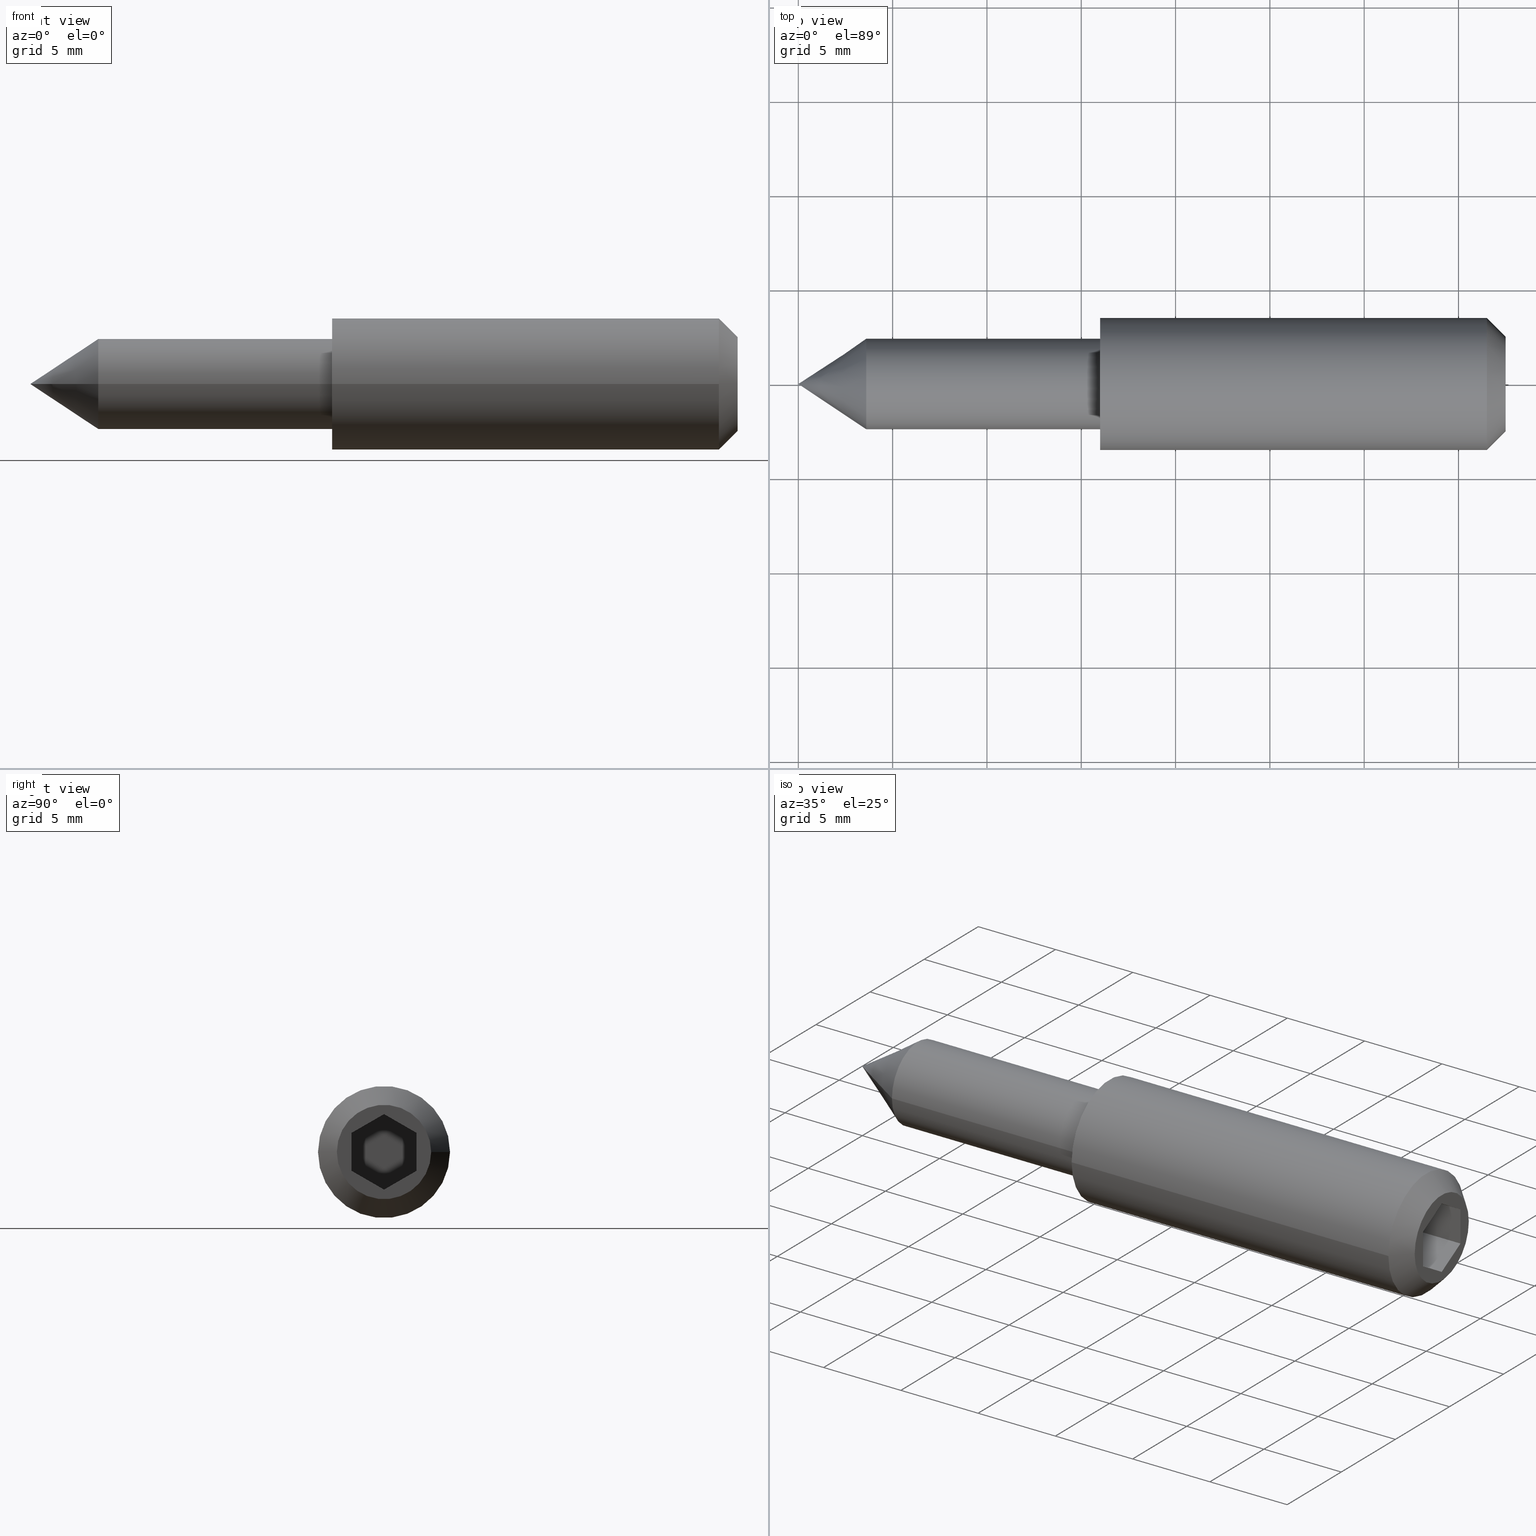
[diagram: canonical four-view strip — front | top / right | iso, engineering-drawing reading convention]
A machine part, canonical four-view strip (front | top / right | iso — engineering-drawing reading convention). The complete STEP part file that produces these views, byte-faithful:
ISO-10303-21;
HEADER;
/* Generated by software containing ST-Developer
 * from STEP Tools, Inc. (www.steptools.com) 
 */

FILE_DESCRIPTION(
/* description */ ('VITE MANIG.SOFF. 4,8X16 TESTA H.21,5 /AV'),
/* implementation_level */ '2;1');

FILE_NAME(
/* name */ 
'Q:\\Catalogo\\3_Profili e accessori MACAP\\Per Download Web e catalog
o artaceo\\ACCESSORI\\PAGINA 47\\DVIXX0000004-XT10207.stp',
/* time_stamp */ '2019-12-16T16:26:44+01:00',
/* author */ ('fzagni'),
/* organization */ (''),
/* preprocessor_version */ 'ST-DEVELOPER v17.2',
/* originating_system */ 'Autodesk Inventor 2019',
/* authorisation */ '');

FILE_SCHEMA (('AUTOMOTIVE_DESIGN { 1 0 10303 214 3 1 1 }'));
ENDSEC;

DATA;
#10=MECHANICAL_DESIGN_GEOMETRIC_PRESENTATION_REPRESENTATION('',(#13),#419);
#11=SHAPE_REPRESENTATION_RELATIONSHIP('SRR','None',#426,#12);
#12=ADVANCED_BREP_SHAPE_REPRESENTATION('',(#14),#418);
#13=STYLED_ITEM('',(#435),#14);
#14=MANIFOLD_SOLID_BREP('Solido2',#239);
#15=FACE_BOUND('',#53,.T.);
#16=FACE_BOUND('',#55,.T.);
#17=CYLINDRICAL_SURFACE('',#270,3.50000000000001);
#18=CYLINDRICAL_SURFACE('',#280,2.4);
#19=CIRCLE('',#267,2.50000000000001);
#20=CIRCLE('',#268,3.50000000000001);
#21=CIRCLE('',#269,3.50000000000001);
#22=CIRCLE('',#271,3.5);
#23=CIRCLE('',#272,3.5);
#24=CIRCLE('',#275,2.4);
#25=CIRCLE('',#276,2.4);
#26=CIRCLE('',#278,2.4);
#27=CIRCLE('',#279,2.4);
#28=CONICAL_SURFACE('',#266,3.00000000000001,0.785398163397447);
#29=CONICAL_SURFACE('',#277,1.2,0.588063400227165);
#30=FACE_OUTER_BOUND('',#43,.T.);
#31=FACE_OUTER_BOUND('',#44,.T.);
#32=FACE_OUTER_BOUND('',#45,.T.);
#33=FACE_OUTER_BOUND('',#46,.T.);
#34=FACE_OUTER_BOUND('',#47,.T.);
#35=FACE_OUTER_BOUND('',#48,.T.);
#36=FACE_OUTER_BOUND('',#49,.T.);
#37=FACE_OUTER_BOUND('',#50,.T.);
#38=FACE_OUTER_BOUND('',#51,.T.);
#39=FACE_OUTER_BOUND('',#52,.T.);
#40=FACE_OUTER_BOUND('',#54,.T.);
#41=FACE_OUTER_BOUND('',#56,.T.);
#42=FACE_OUTER_BOUND('',#57,.T.);
#43=EDGE_LOOP('',(#155,#156,#157,#158));
#44=EDGE_LOOP('',(#159,#160,#161,#162));
#45=EDGE_LOOP('',(#163,#164,#165,#166));
#46=EDGE_LOOP('',(#167,#168,#169,#170));
#47=EDGE_LOOP('',(#171,#172,#173,#174));
#48=EDGE_LOOP('',(#175,#176,#177,#178));
#49=EDGE_LOOP('',(#179,#180,#181,#182,#183,#184));
#50=EDGE_LOOP('',(#185,#186,#187,#188,#189));
#51=EDGE_LOOP('',(#190,#191,#192,#193,#194,#195));
#52=EDGE_LOOP('',(#196));
#53=EDGE_LOOP('',(#197,#198,#199,#200,#201,#202));
#54=EDGE_LOOP('',(#203,#204));
#55=EDGE_LOOP('',(#205,#206));
#56=EDGE_LOOP('',(#207,#208,#209,#210));
#57=EDGE_LOOP('',(#211,#212,#213,#214,#215,#216));
#58=LINE('',#353,#80);
#59=LINE('',#355,#81);
#60=LINE('',#357,#82);
#61=LINE('',#358,#83);
#62=LINE('',#361,#84);
#63=LINE('',#363,#85);
#64=LINE('',#364,#86);
#65=LINE('',#367,#87);
#66=LINE('',#369,#88);
#67=LINE('',#370,#89);
#68=LINE('',#373,#90);
#69=LINE('',#375,#91);
#70=LINE('',#376,#92);
#71=LINE('',#379,#93);
#72=LINE('',#381,#94);
#73=LINE('',#382,#95);
#74=LINE('',#384,#96);
#75=LINE('',#385,#97);
#76=LINE('',#391,#98);
#77=LINE('',#397,#99);
#78=LINE('',#413,#100);
#79=LINE('',#415,#101);
#80=VECTOR('',#285,10.);
#81=VECTOR('',#286,10.);
#82=VECTOR('',#287,10.);
#83=VECTOR('',#288,10.);
#84=VECTOR('',#291,10.);
#85=VECTOR('',#292,10.);
#86=VECTOR('',#293,10.);
#87=VECTOR('',#296,10.);
#88=VECTOR('',#297,10.);
#89=VECTOR('',#298,10.);
#90=VECTOR('',#301,10.);
#91=VECTOR('',#302,10.);
#92=VECTOR('',#303,10.);
#93=VECTOR('',#306,10.);
#94=VECTOR('',#307,10.);
#95=VECTOR('',#308,10.);
#96=VECTOR('',#311,10.);
#97=VECTOR('',#312,10.);
#98=VECTOR('',#319,3.00000000000001);
#99=VECTOR('',#326,3.50000000000001);
#100=VECTOR('',#345,1.2);
#101=VECTOR('',#348,2.4);
#102=VERTEX_POINT('',#351);
#103=VERTEX_POINT('',#352);
#104=VERTEX_POINT('',#354);
#105=VERTEX_POINT('',#356);
#106=VERTEX_POINT('',#360);
#107=VERTEX_POINT('',#362);
#108=VERTEX_POINT('',#366);
#109=VERTEX_POINT('',#368);
#110=VERTEX_POINT('',#372);
#111=VERTEX_POINT('',#374);
#112=VERTEX_POINT('',#378);
#113=VERTEX_POINT('',#380);
#114=VERTEX_POINT('',#388);
#115=VERTEX_POINT('',#390);
#116=VERTEX_POINT('',#392);
#117=VERTEX_POINT('',#396);
#118=VERTEX_POINT('',#398);
#119=VERTEX_POINT('',#403);
#120=VERTEX_POINT('',#404);
#121=VERTEX_POINT('',#408);
#122=VERTEX_POINT('',#409);
#123=VERTEX_POINT('',#412);
#124=EDGE_CURVE('',#102,#103,#58,.T.);
#125=EDGE_CURVE('',#102,#104,#59,.T.);
#126=EDGE_CURVE('',#104,#105,#60,.T.);
#127=EDGE_CURVE('',#103,#105,#61,.T.);
#128=EDGE_CURVE('',#106,#102,#62,.T.);
#129=EDGE_CURVE('',#106,#107,#63,.T.);
#130=EDGE_CURVE('',#107,#104,#64,.T.);
#131=EDGE_CURVE('',#108,#106,#65,.T.);
#132=EDGE_CURVE('',#108,#109,#66,.T.);
#133=EDGE_CURVE('',#109,#107,#67,.T.);
#134=EDGE_CURVE('',#110,#108,#68,.T.);
#135=EDGE_CURVE('',#110,#111,#69,.T.);
#136=EDGE_CURVE('',#111,#109,#70,.T.);
#137=EDGE_CURVE('',#112,#110,#71,.T.);
#138=EDGE_CURVE('',#112,#113,#72,.T.);
#139=EDGE_CURVE('',#113,#111,#73,.T.);
#140=EDGE_CURVE('',#103,#112,#74,.T.);
#141=EDGE_CURVE('',#105,#113,#75,.T.);
#142=EDGE_CURVE('',#114,#114,#19,.T.);
#143=EDGE_CURVE('',#114,#115,#76,.T.);
#144=EDGE_CURVE('',#115,#116,#20,.T.);
#145=EDGE_CURVE('',#116,#115,#21,.T.);
#146=EDGE_CURVE('',#116,#117,#77,.T.);
#147=EDGE_CURVE('',#117,#118,#22,.T.);
#148=EDGE_CURVE('',#118,#117,#23,.T.);
#149=EDGE_CURVE('',#119,#120,#24,.T.);
#150=EDGE_CURVE('',#120,#119,#25,.T.);
#151=EDGE_CURVE('',#121,#122,#26,.T.);
#152=EDGE_CURVE('',#122,#121,#27,.T.);
#153=EDGE_CURVE('',#122,#123,#78,.T.);
#154=EDGE_CURVE('',#120,#122,#79,.T.);
#155=ORIENTED_EDGE('',*,*,#124,.F.);
#156=ORIENTED_EDGE('',*,*,#125,.T.);
#157=ORIENTED_EDGE('',*,*,#126,.T.);
#158=ORIENTED_EDGE('',*,*,#127,.F.);
#159=ORIENTED_EDGE('',*,*,#128,.F.);
#160=ORIENTED_EDGE('',*,*,#129,.T.);
#161=ORIENTED_EDGE('',*,*,#130,.T.);
#162=ORIENTED_EDGE('',*,*,#125,.F.);
#163=ORIENTED_EDGE('',*,*,#131,.F.);
#164=ORIENTED_EDGE('',*,*,#132,.T.);
#165=ORIENTED_EDGE('',*,*,#133,.T.);
#166=ORIENTED_EDGE('',*,*,#129,.F.);
#167=ORIENTED_EDGE('',*,*,#134,.F.);
#168=ORIENTED_EDGE('',*,*,#135,.T.);
#169=ORIENTED_EDGE('',*,*,#136,.T.);
#170=ORIENTED_EDGE('',*,*,#132,.F.);
#171=ORIENTED_EDGE('',*,*,#137,.F.);
#172=ORIENTED_EDGE('',*,*,#138,.T.);
#173=ORIENTED_EDGE('',*,*,#139,.T.);
#174=ORIENTED_EDGE('',*,*,#135,.F.);
#175=ORIENTED_EDGE('',*,*,#140,.F.);
#176=ORIENTED_EDGE('',*,*,#127,.T.);
#177=ORIENTED_EDGE('',*,*,#141,.T.);
#178=ORIENTED_EDGE('',*,*,#138,.F.);
#179=ORIENTED_EDGE('',*,*,#141,.F.);
#180=ORIENTED_EDGE('',*,*,#126,.F.);
#181=ORIENTED_EDGE('',*,*,#130,.F.);
#182=ORIENTED_EDGE('',*,*,#133,.F.);
#183=ORIENTED_EDGE('',*,*,#136,.F.);
#184=ORIENTED_EDGE('',*,*,#139,.F.);
#185=ORIENTED_EDGE('',*,*,#142,.T.);
#186=ORIENTED_EDGE('',*,*,#143,.T.);
#187=ORIENTED_EDGE('',*,*,#144,.T.);
#188=ORIENTED_EDGE('',*,*,#145,.T.);
#189=ORIENTED_EDGE('',*,*,#143,.F.);
#190=ORIENTED_EDGE('',*,*,#144,.F.);
#191=ORIENTED_EDGE('',*,*,#145,.F.);
#192=ORIENTED_EDGE('',*,*,#146,.T.);
#193=ORIENTED_EDGE('',*,*,#147,.T.);
#194=ORIENTED_EDGE('',*,*,#148,.T.);
#195=ORIENTED_EDGE('',*,*,#146,.F.);
#196=ORIENTED_EDGE('',*,*,#142,.F.);
#197=ORIENTED_EDGE('',*,*,#124,.T.);
#198=ORIENTED_EDGE('',*,*,#140,.T.);
#199=ORIENTED_EDGE('',*,*,#137,.T.);
#200=ORIENTED_EDGE('',*,*,#134,.T.);
#201=ORIENTED_EDGE('',*,*,#131,.T.);
#202=ORIENTED_EDGE('',*,*,#128,.T.);
#203=ORIENTED_EDGE('',*,*,#148,.F.);
#204=ORIENTED_EDGE('',*,*,#147,.F.);
#205=ORIENTED_EDGE('',*,*,#149,.T.);
#206=ORIENTED_EDGE('',*,*,#150,.T.);
#207=ORIENTED_EDGE('',*,*,#151,.F.);
#208=ORIENTED_EDGE('',*,*,#152,.F.);
#209=ORIENTED_EDGE('',*,*,#153,.T.);
#210=ORIENTED_EDGE('',*,*,#153,.F.);
#211=ORIENTED_EDGE('',*,*,#149,.F.);
#212=ORIENTED_EDGE('',*,*,#150,.F.);
#213=ORIENTED_EDGE('',*,*,#154,.T.);
#214=ORIENTED_EDGE('',*,*,#152,.T.);
#215=ORIENTED_EDGE('',*,*,#151,.T.);
#216=ORIENTED_EDGE('',*,*,#154,.F.);
#217=PLANE('',#259);
#218=PLANE('',#260);
#219=PLANE('',#261);
#220=PLANE('',#262);
#221=PLANE('',#263);
#222=PLANE('',#264);
#223=PLANE('',#265);
#224=PLANE('',#273);
#225=PLANE('',#274);
#226=ADVANCED_FACE('',(#30),#217,.F.);
#227=ADVANCED_FACE('',(#31),#218,.F.);
#228=ADVANCED_FACE('',(#32),#219,.F.);
#229=ADVANCED_FACE('',(#33),#220,.F.);
#230=ADVANCED_FACE('',(#34),#221,.F.);
#231=ADVANCED_FACE('',(#35),#222,.F.);
#232=ADVANCED_FACE('',(#36),#223,.T.);
#233=ADVANCED_FACE('',(#37),#28,.T.);
#234=ADVANCED_FACE('',(#38),#17,.T.);
#235=ADVANCED_FACE('',(#39,#15),#224,.T.);
#236=ADVANCED_FACE('',(#40,#16),#225,.T.);
#237=ADVANCED_FACE('',(#41),#29,.T.);
#238=ADVANCED_FACE('',(#42),#18,.T.);
#239=CLOSED_SHELL('',(#226,#227,#228,#229,#230,#231,#232,#233,#234,#235,
#236,#237,#238));
#240=DERIVED_UNIT_ELEMENT(#242,1.);
#241=DERIVED_UNIT_ELEMENT(#421,3.);
#242=(
MASS_UNIT()
NAMED_UNIT(*)
SI_UNIT($,.GRAM.)
);
#243=DERIVED_UNIT((#240,#241));
#244=MEASURE_REPRESENTATION_ITEM('density measure',
POSITIVE_RATIO_MEASURE(7.85),#243);
#245=PROPERTY_DEFINITION_REPRESENTATION(#250,#247);
#246=PROPERTY_DEFINITION_REPRESENTATION(#251,#248);
#247=REPRESENTATION('material name',(#249),#418);
#248=REPRESENTATION('density',(#244),#418);
#249=DESCRIPTIVE_REPRESENTATION_ITEM('Acciaio S355JR','Acciaio S355JR');
#250=PROPERTY_DEFINITION('material property','material name',#428);
#251=PROPERTY_DEFINITION('material property','density of part',#428);
#252=DATE_TIME_ROLE('creation_date');
#253=APPLIED_DATE_AND_TIME_ASSIGNMENT(#254,#252,(#428));
#254=DATE_AND_TIME(#255,#256);
#255=CALENDAR_DATE(2012,29,10);
#256=LOCAL_TIME(23,0,0.,#257);
#257=COORDINATED_UNIVERSAL_TIME_OFFSET(0,0,.BEHIND.);
#258=AXIS2_PLACEMENT_3D('placement',#349,#281,#282);
#259=AXIS2_PLACEMENT_3D('',#350,#283,#284);
#260=AXIS2_PLACEMENT_3D('',#359,#289,#290);
#261=AXIS2_PLACEMENT_3D('',#365,#294,#295);
#262=AXIS2_PLACEMENT_3D('',#371,#299,#300);
#263=AXIS2_PLACEMENT_3D('',#377,#304,#305);
#264=AXIS2_PLACEMENT_3D('',#383,#309,#310);
#265=AXIS2_PLACEMENT_3D('',#386,#313,#314);
#266=AXIS2_PLACEMENT_3D('',#387,#315,#316);
#267=AXIS2_PLACEMENT_3D('',#389,#317,#318);
#268=AXIS2_PLACEMENT_3D('',#393,#320,#321);
#269=AXIS2_PLACEMENT_3D('',#394,#322,#323);
#270=AXIS2_PLACEMENT_3D('',#395,#324,#325);
#271=AXIS2_PLACEMENT_3D('',#399,#327,#328);
#272=AXIS2_PLACEMENT_3D('',#400,#329,#330);
#273=AXIS2_PLACEMENT_3D('',#401,#331,#332);
#274=AXIS2_PLACEMENT_3D('',#402,#333,#334);
#275=AXIS2_PLACEMENT_3D('',#405,#335,#336);
#276=AXIS2_PLACEMENT_3D('',#406,#337,#338);
#277=AXIS2_PLACEMENT_3D('',#407,#339,#340);
#278=AXIS2_PLACEMENT_3D('',#410,#341,#342);
#279=AXIS2_PLACEMENT_3D('',#411,#343,#344);
#280=AXIS2_PLACEMENT_3D('',#414,#346,#347);
#281=DIRECTION('axis',(0.,0.,1.));
#282=DIRECTION('refdir',(1.,0.,0.));
#283=DIRECTION('center_axis',(0.,-0.5,-0.866025403784439));
#284=DIRECTION('ref_axis',(0.,-0.866025403784439,0.5));
#285=DIRECTION('',(0.,-0.866025403784439,0.5));
#286=DIRECTION('',(-1.,0.,0.));
#287=DIRECTION('',(0.,-0.866025403784439,0.5));
#288=DIRECTION('',(-1.,0.,0.));
#289=DIRECTION('center_axis',(0.,0.500000000000001,-0.866025403784438));
#290=DIRECTION('ref_axis',(0.,-0.866025403784438,-0.5));
#291=DIRECTION('',(0.,-0.866025403784438,-0.5));
#292=DIRECTION('',(-1.,0.,0.));
#293=DIRECTION('',(0.,-0.866025403784438,-0.5));
#294=DIRECTION('center_axis',(0.,1.,1.38777878078145E-16));
#295=DIRECTION('ref_axis',(0.,1.38777878078145E-16,-1.));
#296=DIRECTION('',(0.,1.38777878078145E-16,-1.));
#297=DIRECTION('',(-1.,0.,0.));
#298=DIRECTION('',(0.,1.38777878078145E-16,-1.));
#299=DIRECTION('center_axis',(0.,0.5,0.866025403784439));
#300=DIRECTION('ref_axis',(0.,0.866025403784439,-0.5));
#301=DIRECTION('',(0.,0.866025403784439,-0.5));
#302=DIRECTION('',(-1.,0.,0.));
#303=DIRECTION('',(0.,0.866025403784439,-0.5));
#304=DIRECTION('center_axis',(0.,-0.5,0.866025403784439));
#305=DIRECTION('ref_axis',(0.,0.866025403784439,0.5));
#306=DIRECTION('',(0.,0.866025403784439,0.5));
#307=DIRECTION('',(-1.,0.,0.));
#308=DIRECTION('',(0.,0.866025403784439,0.5));
#309=DIRECTION('center_axis',(0.,-1.,1.38777878078145E-16));
#310=DIRECTION('ref_axis',(0.,1.38777878078145E-16,1.));
#311=DIRECTION('',(0.,1.38777878078145E-16,1.));
#312=DIRECTION('',(0.,1.38777878078145E-16,1.));
#313=DIRECTION('center_axis',(1.,0.,0.));
#314=DIRECTION('ref_axis',(0.,0.,-1.));
#315=DIRECTION('center_axis',(-1.,0.,0.));
#316=DIRECTION('ref_axis',(0.,-1.,0.));
#317=DIRECTION('center_axis',(-1.,0.,0.));
#318=DIRECTION('ref_axis',(0.,-1.,0.));
#319=DIRECTION('',(-0.707106781186549,0.707106781186546,8.65956056235492E-17));
#320=DIRECTION('center_axis',(1.,0.,0.));
#321=DIRECTION('ref_axis',(0.,-1.,0.));
#322=DIRECTION('center_axis',(1.,0.,0.));
#323=DIRECTION('ref_axis',(0.,-1.,0.));
#324=DIRECTION('center_axis',(1.,0.,0.));
#325=DIRECTION('ref_axis',(0.,1.,0.));
#326=DIRECTION('',(-1.,0.,0.));
#327=DIRECTION('center_axis',(1.,0.,0.));
#328=DIRECTION('ref_axis',(0.,1.,0.));
#329=DIRECTION('center_axis',(1.,0.,0.));
#330=DIRECTION('ref_axis',(0.,1.,0.));
#331=DIRECTION('center_axis',(1.,0.,0.));
#332=DIRECTION('ref_axis',(0.,0.,-1.));
#333=DIRECTION('center_axis',(-1.,0.,0.));
#334=DIRECTION('ref_axis',(0.,0.,1.));
#335=DIRECTION('center_axis',(1.,0.,0.));
#336=DIRECTION('ref_axis',(0.,1.,0.));
#337=DIRECTION('center_axis',(1.,0.,0.));
#338=DIRECTION('ref_axis',(0.,1.,0.));
#339=DIRECTION('center_axis',(1.,0.,0.));
#340=DIRECTION('ref_axis',(0.,1.,0.));
#341=DIRECTION('center_axis',(1.,0.,0.));
#342=DIRECTION('ref_axis',(0.,1.,0.));
#343=DIRECTION('center_axis',(1.,0.,0.));
#344=DIRECTION('ref_axis',(0.,1.,0.));
#345=DIRECTION('',(-0.832016568870035,0.554750781095201,6.79373768392731E-17));
#346=DIRECTION('center_axis',(1.,0.,0.));
#347=DIRECTION('ref_axis',(0.,1.,0.));
#348=DIRECTION('',(-1.,0.,0.));
#349=CARTESIAN_POINT('',(0.,0.,0.));
#350=CARTESIAN_POINT('Origin',(37.5,2.06871506404621E-15,-2.));
#351=CARTESIAN_POINT('',(37.5,2.06871506404621E-15,-2.));
#352=CARTESIAN_POINT('',(37.5,-1.73205080756888,-1.));
#353=CARTESIAN_POINT('',(37.5,0.223237298107784,-2.12888611415569));
#354=CARTESIAN_POINT('',(30.5,1.94289029309402E-15,-2.));
#355=CARTESIAN_POINT('',(37.5,2.06871506404621E-15,-2.));
#356=CARTESIAN_POINT('',(30.5,-1.73205080756888,-1.));
#357=CARTESIAN_POINT('',(30.5,2.06871506404621E-15,-2.));
#358=CARTESIAN_POINT('',(37.5,-1.73205080756888,-1.));
#359=CARTESIAN_POINT('Origin',(37.5,1.73205080756888,-1.));
#360=CARTESIAN_POINT('',(37.5,1.73205080756888,-1.));
#361=CARTESIAN_POINT('',(37.5,1.95528810567666,-0.871113885844307));
#362=CARTESIAN_POINT('',(30.5,1.73205080756888,-1.));
#363=CARTESIAN_POINT('',(37.5,1.73205080756888,-1.));
#364=CARTESIAN_POINT('',(30.5,1.73205080756888,-1.));
#365=CARTESIAN_POINT('Origin',(37.5,1.73205080756888,1.));
#366=CARTESIAN_POINT('',(37.5,1.73205080756888,1.));
#367=CARTESIAN_POINT('',(37.5,1.73205080756888,0.5));
#368=CARTESIAN_POINT('',(30.5,1.73205080756888,1.));
#369=CARTESIAN_POINT('',(37.5,1.73205080756888,1.));
#370=CARTESIAN_POINT('',(30.5,1.73205080756888,1.));
#371=CARTESIAN_POINT('Origin',(37.5,0.,2.));
#372=CARTESIAN_POINT('',(37.5,0.,2.));
#373=CARTESIAN_POINT('',(37.5,1.08926270189222,1.37111388584431));
#374=CARTESIAN_POINT('',(30.5,0.,2.));
#375=CARTESIAN_POINT('',(37.5,0.,2.));
#376=CARTESIAN_POINT('',(30.5,0.,2.));
#377=CARTESIAN_POINT('Origin',(37.5,-1.73205080756888,1.));
#378=CARTESIAN_POINT('',(37.5,-1.73205080756888,1.));
#379=CARTESIAN_POINT('',(37.5,-0.642788105676656,1.62888611415569));
#380=CARTESIAN_POINT('',(30.5,-1.73205080756888,1.));
#381=CARTESIAN_POINT('',(37.5,-1.73205080756888,1.));
#382=CARTESIAN_POINT('',(30.5,-1.73205080756888,1.));
#383=CARTESIAN_POINT('Origin',(37.5,-1.73205080756888,-1.));
#384=CARTESIAN_POINT('',(37.5,-1.73205080756888,-0.5));
#385=CARTESIAN_POINT('',(30.5,-1.73205080756888,-1.));
#386=CARTESIAN_POINT('Origin',(30.5,8.67361737988404E-17,1.30104260698261E-16));
#387=CARTESIAN_POINT('Origin',(37.,0.,0.));
#388=CARTESIAN_POINT('',(37.5,2.50000000000001,-3.06161699786839E-16));
#389=CARTESIAN_POINT('Origin',(37.5,0.,0.));
#390=CARTESIAN_POINT('',(36.5,3.50000000000001,4.28626379701574E-16));
#391=CARTESIAN_POINT('',(37.,3.00000000000001,3.67394039744207E-16));
#392=CARTESIAN_POINT('',(36.5,-3.50000000000001,-4.28626379701574E-16));
#393=CARTESIAN_POINT('Origin',(36.5,0.,0.));
#394=CARTESIAN_POINT('Origin',(36.5,0.,0.));
#395=CARTESIAN_POINT('Origin',(26.75,0.,0.));
#396=CARTESIAN_POINT('',(16.,-3.50000000000001,-4.28626379701574E-16));
#397=CARTESIAN_POINT('',(26.75,-3.50000000000001,-4.28626379701574E-16));
#398=CARTESIAN_POINT('',(16.,3.5,0.));
#399=CARTESIAN_POINT('Origin',(16.,0.,0.));
#400=CARTESIAN_POINT('Origin',(16.,0.,0.));
#401=CARTESIAN_POINT('Origin',(37.5,1.75,0.));
#402=CARTESIAN_POINT('Origin',(16.,2.95,0.));
#403=CARTESIAN_POINT('',(16.,2.4,0.));
#404=CARTESIAN_POINT('',(16.,-2.4,-2.93915231795365E-16));
#405=CARTESIAN_POINT('Origin',(16.,0.,0.));
#406=CARTESIAN_POINT('Origin',(16.,0.,0.));
#407=CARTESIAN_POINT('Origin',(1.79976291457029,0.,0.));
#408=CARTESIAN_POINT('',(3.59952582914057,2.4,0.));
#409=CARTESIAN_POINT('',(3.59952582914057,-2.4,-2.93915231795365E-16));
#410=CARTESIAN_POINT('Origin',(3.59952582914057,0.,0.));
#411=CARTESIAN_POINT('Origin',(3.59952582914057,0.,0.));
#412=CARTESIAN_POINT('',(0.,0.,0.));
#413=CARTESIAN_POINT('',(1.79976291457029,-1.2,-1.46957615897682E-16));
#414=CARTESIAN_POINT('Origin',(9.79976291457029,0.,0.));
#415=CARTESIAN_POINT('',(9.79976291457029,-2.4,-2.93915231795365E-16));
#416=UNCERTAINTY_MEASURE_WITH_UNIT(LENGTH_MEASURE(0.01),#420,
'DISTANCE_ACCURACY_VALUE',
'Maximum model space distance between geometric entities at asserted c
onnectivities');
#417=UNCERTAINTY_MEASURE_WITH_UNIT(LENGTH_MEASURE(0.01),#420,
'DISTANCE_ACCURACY_VALUE',
'Maximum model space distance between geometric entities at asserted c
onnectivities');
#418=(
GEOMETRIC_REPRESENTATION_CONTEXT(3)
GLOBAL_UNCERTAINTY_ASSIGNED_CONTEXT((#416))
GLOBAL_UNIT_ASSIGNED_CONTEXT((#420,#422,#423))
REPRESENTATION_CONTEXT('','3D')
);
#419=(
GEOMETRIC_REPRESENTATION_CONTEXT(3)
GLOBAL_UNCERTAINTY_ASSIGNED_CONTEXT((#417))
GLOBAL_UNIT_ASSIGNED_CONTEXT((#420,#422,#423))
REPRESENTATION_CONTEXT('','3D')
);
#420=(
LENGTH_UNIT()
NAMED_UNIT(*)
SI_UNIT(.MILLI.,.METRE.)
);
#421=(
LENGTH_UNIT()
NAMED_UNIT(*)
SI_UNIT(.CENTI.,.METRE.)
);
#422=(
NAMED_UNIT(*)
PLANE_ANGLE_UNIT()
SI_UNIT($,.RADIAN.)
);
#423=(
NAMED_UNIT(*)
SI_UNIT($,.STERADIAN.)
SOLID_ANGLE_UNIT()
);
#424=SHAPE_DEFINITION_REPRESENTATION(#425,#426);
#425=PRODUCT_DEFINITION_SHAPE('',$,#428);
#426=SHAPE_REPRESENTATION('',(#258),#418);
#427=PRODUCT_DEFINITION_CONTEXT('part definition',#432,'design');
#428=PRODUCT_DEFINITION('XT10207','XT10207',#429,#427);
#429=PRODUCT_DEFINITION_FORMATION('A',$,#434);
#430=PRODUCT_RELATED_PRODUCT_CATEGORY('XT10207','XT10207',(#434));
#431=APPLICATION_PROTOCOL_DEFINITION('international standard',
'automotive_design',2009,#432);
#432=APPLICATION_CONTEXT(
'Core Data for Automotive Mechanical Design Process');
#433=PRODUCT_CONTEXT('part definition',#432,'mechanical');
#434=PRODUCT('XT10207','XT10207',
'VITE MANIG.SOFF. 4,8X16 TESTA H.21,5 /AV',(#433));
#435=PRESENTATION_STYLE_ASSIGNMENT((#436));
#436=SURFACE_STYLE_USAGE(.BOTH.,#439);
#437=SURFACE_STYLE_RENDERING_WITH_PROPERTIES($,#443,(#438));
#438=SURFACE_STYLE_TRANSPARENT(0.);
#439=SURFACE_SIDE_STYLE('',(#440,#437));
#440=SURFACE_STYLE_FILL_AREA(#441);
#441=FILL_AREA_STYLE('',(#442));
#442=FILL_AREA_STYLE_COLOUR('',#443);
#443=COLOUR_RGB('',0.933333333333333,0.933333333333333,0.933333333333333);
ENDSEC;
END-ISO-10303-21;
